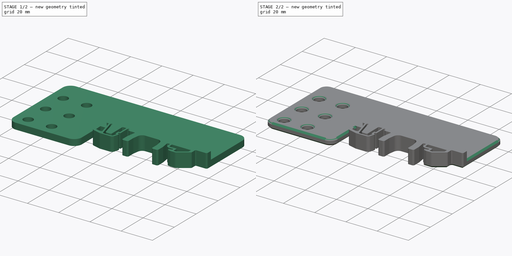
[diagram: build sequence overview — one tinted view per stage of 2, left to right]
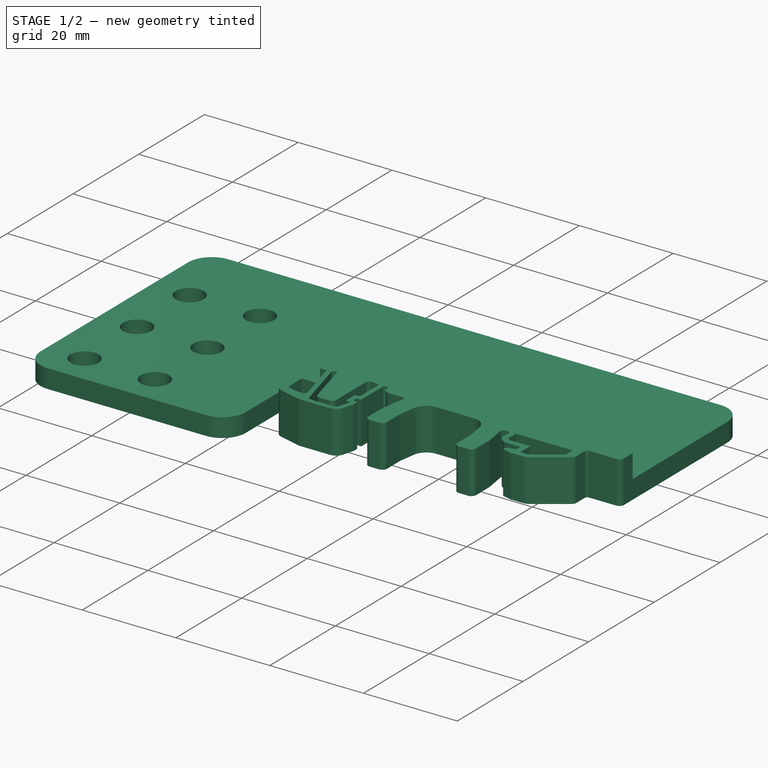
[diagram: stage 1 of 2 — iso view after this stage's code; geometry added in this stage tinted green]
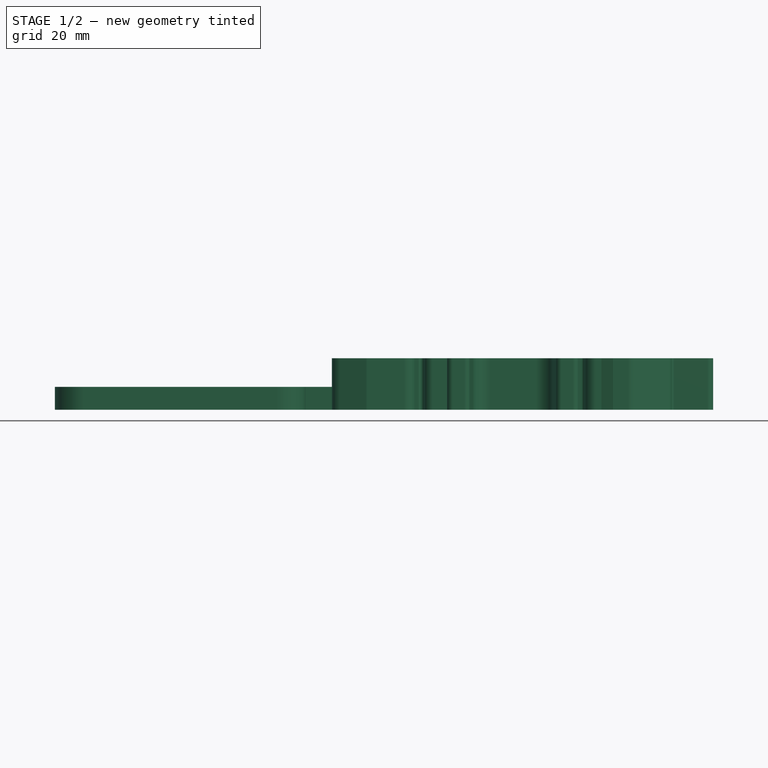
[diagram: stage 1 of 2 — front view after this stage's code; geometry added in this stage tinted green]
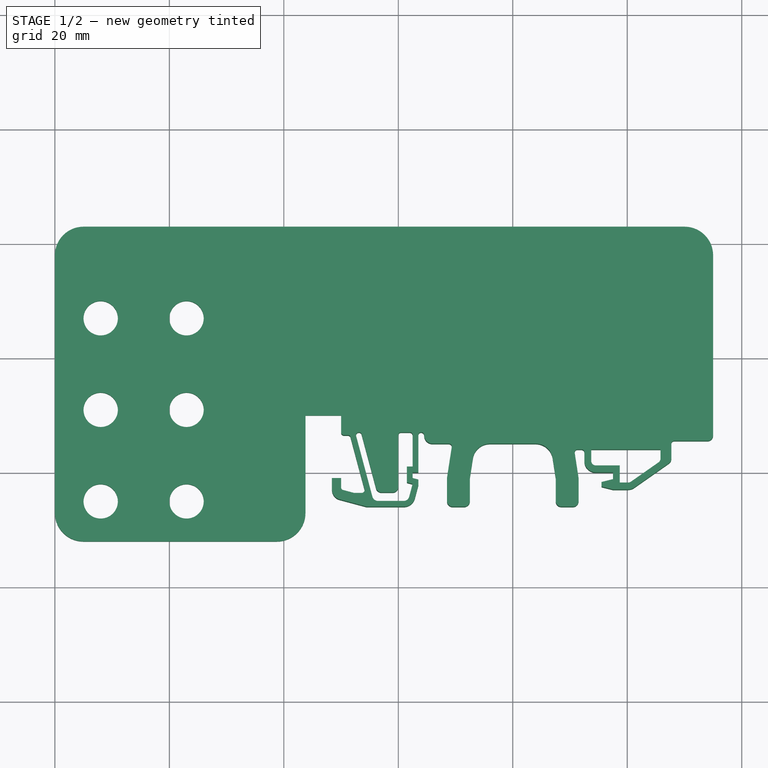
[diagram: stage 1 of 2 — top view after this stage's code; geometry added in this stage tinted green]
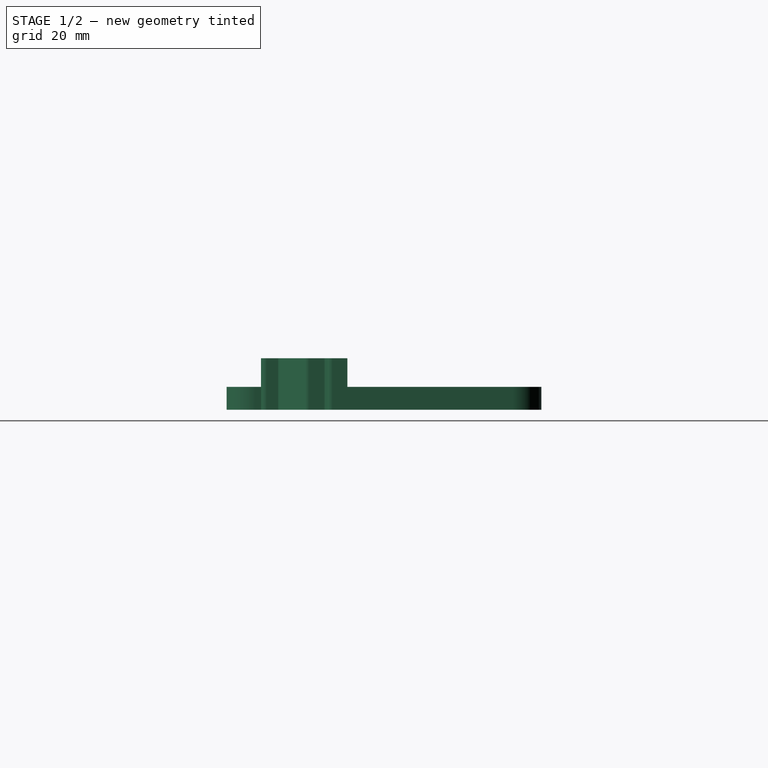
[diagram: stage 1 of 2 — right view after this stage's code; geometry added in this stage tinted green]
FCSTD DOCUMENT  (FreeCAD 0.21R33771 (Git))
Label: 20240715a_din_rail_spacer_9
License: All rights reserved
LicenseURL: http://en.wikipedia.org/wiki/All_rights_reserved
objects: Sketcher::SketchObject×2, PartDesign::Chamfer×2, PartDesign::Pad×1, PartDesign::Pocket×1, PartDesign::Body×1
note: 11 computed .brp shape members not serialized (recipe doc carries the construction recipe); baked Part::Feature solids carry a one-line shape summary decoded from their .brp

FEATURE [Sketcher::SketchObject] Sketch
  FullyConstrained = false
  MapMode = 5
  Support = -> [XY_Plane]
  sketch-geometry (125):
    g0: LineSegment StartX=-30 StartY=10 StartZ=0 EndX=-30 EndY=7 EndZ=0
    g1: ArcOfCircle CenterX=-29.5 CenterY=7 CenterZ=0 NormalX=0 NormalY=0 NormalZ=1 AngleXU=0 Radius=0.5 StartAngle=3.14159 EndAngle=4.71239
    g2: ArcOfCircle CenterX=-28.8294 CenterY=6 CenterZ=0 NormalX=0 NormalY=0 NormalZ=1 AngleXU=0 Radius=0.5 StartAngle=0.261799 EndAngle=1.5708
    g3: LineSegment StartX=-28.3464 StartY=6.12941 StartZ=0 EndX=-25.9081 EndY=-2.97059 EndZ=0
    g4: ArcOfCircle CenterX=-26.3911 CenterY=-3.1 CenterZ=0 NormalX=0 NormalY=0 NormalZ=1 AngleXU=0 Radius=0.5 StartAngle=4.71239 EndAngle=6.54498
    g5: ArcOfCircle CenterX=-29.5 CenterY=-2.61451 CenterZ=0 NormalX=0 NormalY=0 NormalZ=1 AngleXU=0 Radius=0.5 StartAngle=3.14159 EndAngle=4.45059
    g6: LineSegment StartX=-30 StartY=-2.61451 StartZ=0 EndX=-30 EndY=-1 EndZ=0
    g7: LineSegment StartX=-30 StartY=-1 StartZ=0 EndX=-31.6 EndY=-1 EndZ=0
    g8: LineSegment StartX=-31.6 StartY=-1 StartZ=0 EndX=-31.6 EndY=-3 EndZ=0
    g9: ArcOfCircle CenterX=-29.8 CenterY=-3 CenterZ=0 NormalX=0 NormalY=0 NormalZ=1 AngleXU=0 Radius=1.8 StartAngle=3.14159 EndAngle=4.45059
    g10: LineSegment StartX=-30.2659 StartY=-4.73867 StartZ=0 EndX=-25.6857 EndY=-5.96593 EndZ=0
    g11: ArcOfCircle CenterX=-25.4269 CenterY=-5 CenterZ=0 NormalX=0 NormalY=0 NormalZ=1 AngleXU=0 Radius=1 StartAngle=4.45059 EndAngle=4.71239
    g12: LineSegment StartX=-25.4269 StartY=-6 StartZ=0 EndX=-19.0347 EndY=-6 EndZ=0
    g13: ArcOfCircle CenterX=-19.0347 CenterY=-4 CenterZ=0 NormalX=0 NormalY=0 NormalZ=1 AngleXU=0 Radius=2 StartAngle=4.71239 EndAngle=6.02139
    g14: LineSegment StartX=-17.1028 StartY=-4.51764 StartZ=0 EndX=-16.5 EndY=-2.26795 EndZ=0
    g15: LineSegment StartX=-16.5 StartY=-2.26795 StartZ=0 EndX=-16.5 EndY=-1.26795 EndZ=0
    g16: LineSegment StartX=-16.5 StartY=-1.26795 StartZ=0 EndX=-17.5 EndY=-1 EndZ=0
    g17: LineSegment StartX=-17.5 StartY=-1 StartZ=0 EndX=-17.5 EndY=0 EndZ=0
    g18: LineSegment StartX=-17.5 StartY=0 StartZ=0 EndX=-16.5 EndY=0 EndZ=0
    g19: LineSegment StartX=-16.5 StartY=0 StartZ=0 EndX=-16.5 EndY=6.5 EndZ=0
    g20: ArcOfCircle CenterX=-16 CenterY=6.5 CenterZ=0 NormalX=0 NormalY=0 NormalZ=1 AngleXU=0 Radius=0.5 StartAngle=5e-16 EndAngle=3.14159
    g21: ArcOfCircle CenterX=-14 CenterY=6.5 CenterZ=0 NormalX=0 NormalY=0 NormalZ=1 AngleXU=0 Radius=1.5 StartAngle=3.14159 EndAngle=4.71239
    g22: LineSegment StartX=-14 StartY=5 StartZ=0 EndX=-11.1548 EndY=5 EndZ=0
    g23: ArcOfCircle CenterX=-11.1548 CenterY=4.5 CenterZ=0 NormalX=0 NormalY=0 NormalZ=1 AngleXU=0 Radius=0.5 StartAngle=6.12964 EndAngle=7.85398
    g24: LineSegment StartX=-10.6606 StartY=4.42353 StartZ=0 EndX=-11.5 EndY=-1 EndZ=0
    g25: LineSegment StartX=-11.5 StartY=-1 StartZ=0 EndX=-11.5 EndY=-5 EndZ=0
    g26: ArcOfCircle CenterX=-10.5 CenterY=-5 CenterZ=0 NormalX=0 NormalY=0 NormalZ=1 AngleXU=0 Radius=1 StartAngle=3.14159 EndAngle=4.71239
    g27: LineSegment StartX=-10.5 StartY=-6 StartZ=0 EndX=-8.5 EndY=-6 EndZ=0
    g28: ArcOfCircle CenterX=-8.5 CenterY=-5 CenterZ=0 NormalX=0 NormalY=0 NormalZ=1 AngleXU=0 Radius=1 StartAngle=4.71239 EndAngle=6.28319
    g29: LineSegment StartX=-7.5 StartY=-5 StartZ=0 EndX=-7.5 EndY=-1 EndZ=0
    g30: LineSegment StartX=-7.5 StartY=-1 StartZ=0 EndX=-6.96471 EndY=2.45882 EndZ=0
    g31: ArcOfCircle CenterX=-4 CenterY=2 CenterZ=0 NormalX=0 NormalY=0 NormalZ=1 AngleXU=0 Radius=3 StartAngle=1.5708 EndAngle=2.98805
    g32: LineSegment StartX=-4 StartY=5 StartZ=0 EndX=4 EndY=5 EndZ=0
    g33: ArcOfCircle CenterX=4 CenterY=2 CenterZ=0 NormalX=0 NormalY=0 NormalZ=1 AngleXU=0 Radius=3 StartAngle=0.153544 EndAngle=1.5708
    g34: LineSegment StartX=6.96471 StartY=2.45882 StartZ=0 EndX=7.5 EndY=-1 EndZ=0
    g35: LineSegment StartX=7.5 StartY=-1 StartZ=0 EndX=7.5 EndY=-5 EndZ=0
    g36: ArcOfCircle CenterX=8.5 CenterY=-5 CenterZ=0 NormalX=0 NormalY=0 NormalZ=1 AngleXU=0 Radius=1 StartAngle=3.14159 EndAngle=4.71239
    g37: LineSegment StartX=8.5 StartY=-6 StartZ=0 EndX=10.5 EndY=-6 EndZ=0
    g38: ArcOfCircle CenterX=10.5 CenterY=-5 CenterZ=0 NormalX=0 NormalY=0 NormalZ=1 AngleXU=0 Radius=1 StartAngle=4.71239 EndAngle=6.28319
    g39: LineSegment StartX=11.5 StartY=-5 StartZ=0 EndX=11.5 EndY=-1 EndZ=0
    g40: LineSegment StartX=11.5 StartY=-1 StartZ=0 EndX=10.8154 EndY=3.42353 EndZ=0
    g41: LineSegment StartX=12.5 StartY=3.5 StartZ=0 EndX=12.5 EndY=2 EndZ=0
    g42: ArcOfCircle CenterX=14.5 CenterY=2 CenterZ=0 NormalX=0 NormalY=0 NormalZ=1 AngleXU=0 Radius=2 StartAngle=3.14159 EndAngle=4.71239
    g43: LineSegment StartX=14.5 StartY=0 StartZ=0 EndX=17.5 EndY=0 EndZ=0
    g44: LineSegment StartX=17.5 StartY=0 StartZ=0 EndX=17.5 EndY=-1.2 EndZ=0
    g45: LineSegment StartX=17.5 StartY=-1.2 StartZ=0 EndX=15.5 EndY=-1.7 EndZ=0
    g46: LineSegment StartX=15.5 StartY=-1.7 StartZ=0 EndX=15.5 EndY=-2.5 EndZ=0
    g47: LineSegment StartX=15.5 StartY=-2.5 StartZ=0 EndX=17.5 EndY=-3 EndZ=0
    g48: LineSegment StartX=17.5 StartY=-3 StartZ=0 EndX=20.1 EndY=-3 EndZ=0
    g49: ArcOfCircle CenterX=20.1 CenterY=-1 CenterZ=0 NormalX=0 NormalY=0 NormalZ=1 AngleXU=0 Radius=2 StartAngle=4.71239 EndAngle=5.32325
    g50: LineSegment StartX=21.2472 StartY=-2.6383 StartZ=0 EndX=27.2727 EndY=1.58085 EndZ=0
    g51: LineSegment StartX=35 StartY=6.5 StartZ=0 EndX=35 EndY=38 EndZ=0
    g52: LineSegment StartX=-23.8943 StartY=-2.75882 StartZ=0 EndX=-26.4099 EndY=6.62941 EndZ=0
    g53: ArcOfCircle CenterX=-26.8928 CenterY=6.5 CenterZ=0 NormalX=0 NormalY=0 NormalZ=1 AngleXU=0 Radius=0.5 StartAngle=0.261799 EndAngle=3.40339
    g54: LineSegment StartX=-27.3758 StartY=6.37059 StartZ=0 EndX=-24.5276 EndY=-4.25882 EndZ=0
    g55: ArcOfCircle CenterX=-23.5617 CenterY=-4 CenterZ=0 NormalX=0 NormalY=0 NormalZ=1 AngleXU=0 Radius=1 StartAngle=3.40339 EndAngle=4.71239
    g56: LineSegment StartX=-23.5617 StartY=-5 StartZ=0 EndX=-19.0617 EndY=-5 EndZ=0
    g57: ArcOfCircle CenterX=-19.0617 CenterY=-4 CenterZ=0 NormalX=0 NormalY=0 NormalZ=1 AngleXU=0 Radius=1 StartAngle=4.71239 EndAngle=6.02139
    g58: LineSegment StartX=-18.0958 StartY=-4.25882 StartZ=0 EndX=-17.5 EndY=-2.03528 EndZ=0
    g59: LineSegment StartX=-17.5 StartY=-2.03528 StartZ=0 EndX=-18.5 EndY=-1.76733 EndZ=0
    g60: LineSegment StartX=-18.5 StartY=-1.76733 StartZ=0 EndX=-18.5 EndY=1 EndZ=0
    g61: LineSegment StartX=-18.5 StartY=1 StartZ=0 EndX=-17.5 EndY=1 EndZ=0
    g62: LineSegment StartX=-17.5 StartY=1 StartZ=0 EndX=-17.5 EndY=6.5 EndZ=0
    g63: ArcOfCircle CenterX=-18 CenterY=6.5 CenterZ=0 NormalX=0 NormalY=0 NormalZ=1 AngleXU=0 Radius=0.5 StartAngle=0 EndAngle=1.5708
    g64: LineSegment StartX=-18 StartY=7 StartZ=0 EndX=-19.5 EndY=7 EndZ=0
    g65: ArcOfCircle CenterX=-19.5 CenterY=6.5 CenterZ=0 NormalX=0 NormalY=0 NormalZ=1 AngleXU=0 Radius=0.5 StartAngle=1.5708 EndAngle=3.14159
    g66: LineSegment StartX=-20 StartY=6.5 StartZ=0 EndX=-20 EndY=-2.5 EndZ=0
    g67: ArcOfCircle CenterX=-21 CenterY=-2.5 CenterZ=0 NormalX=0 NormalY=0 NormalZ=1 AngleXU=0 Radius=1 StartAngle=4.71239 EndAngle=6.28319
    g68: LineSegment StartX=-21 StartY=-3.5 StartZ=0 EndX=-22.9284 EndY=-3.5 EndZ=0
    g69: ArcOfCircle CenterX=-22.9284 CenterY=-2.5 CenterZ=0 NormalX=0 NormalY=0 NormalZ=1 AngleXU=0 Radius=1 StartAngle=3.40339 EndAngle=4.71239
    g70: LineSegment StartX=25.8188 StartY=4 StartZ=0 EndX=13.7 EndY=4 EndZ=0
    g71: LineSegment StartX=13.7 StartY=4 StartZ=0 EndX=13.7 EndY=2 EndZ=0
    g72: ArcOfCircle CenterX=14.5 CenterY=2 CenterZ=0 NormalX=0 NormalY=0 NormalZ=1 AngleXU=0 Radius=0.8 StartAngle=3.14159 EndAngle=4.71239
    g73: LineSegment StartX=14.5 StartY=1.2 StartZ=0 EndX=18.7 EndY=1.2 EndZ=0
    g74: LineSegment StartX=18.7 StartY=1.2 StartZ=0 EndX=18.7 EndY=-1.8 EndZ=0
    g75: LineSegment StartX=18.7 StartY=-1.8 StartZ=0 EndX=20.1 EndY=-1.8 EndZ=0
    g76: ArcOfCircle CenterX=20.1 CenterY=-0.8 CenterZ=0 NormalX=0 NormalY=0 NormalZ=1 AngleXU=0 Radius=1 StartAngle=4.71239 EndAngle=5.32325
    g77: LineSegment StartX=20.6736 StartY=-1.61915 StartZ=0 EndX=25.4776 EndY=1.74468 EndZ=0
    g78: ArcOfCircle CenterX=25.0188 CenterY=2.4 CenterZ=0 NormalX=0 NormalY=0 NormalZ=1 AngleXU=0 Radius=0.8 StartAngle=5.32325 EndAngle=6.28319
    g79: LineSegment StartX=25.8188 StartY=2.4 StartZ=0 EndX=25.8188 EndY=4 EndZ=0
    g80: LineSegment StartX=-30 StartY=7 StartZ=0 EndX=35 EndY=7 EndZ=0
    g81: LineSegment StartX=-29.6294 StartY=-3.09747 StartZ=0 EndX=-27.754 EndY=-3.6 EndZ=0
    g82: LineSegment StartX=-27.754 StartY=-3.6 StartZ=0 EndX=-26.3911 EndY=-3.6 EndZ=0
    g83: LineSegment StartX=-29.5 StartY=6.5 StartZ=0 EndX=-28.8294 EndY=6.5 EndZ=0
    g84: LineSegment StartX=11.3095 StartY=4 StartZ=0 EndX=12 EndY=4 EndZ=0
    g85: ArcOfCircle CenterX=11.3095 CenterY=3.5 CenterZ=0 NormalX=0 NormalY=0 NormalZ=1 AngleXU=0 Radius=0.5 StartAngle=1.5708 EndAngle=3.29514
    g86: GeomPoint X=10.7262 Y=4 Z=0
    g87: ArcOfCircle CenterX=12 CenterY=3.5 CenterZ=0 NormalX=0 NormalY=0 NormalZ=1 AngleXU=0 Radius=0.5 StartAngle=2e-16 EndAngle=1.5708
    g88: GeomPoint X=12.5 Y=4 Z=0
    g89: LineSegment StartX=34 StartY=5.5 StartZ=0 EndX=28.1992 EndY=5.5 EndZ=0
    g90: ArcOfCircle CenterX=26.6992 CenterY=2.4 CenterZ=0 NormalX=0 NormalY=0 NormalZ=1 AngleXU=0 Radius=1 StartAngle=5.32325 EndAngle=6.28319
    g91: ArcOfCircle CenterX=34 CenterY=6.5 CenterZ=0 NormalX=0 NormalY=0 NormalZ=1 AngleXU=0 Radius=1 StartAngle=4.71239 EndAngle=6.28319
    g92: GeomPoint X=35 Y=5.5 Z=0
    g93: LineSegment StartX=27.6992 StartY=2.4 StartZ=0 EndX=27.6992 EndY=5 EndZ=0
    g94: ArcOfCircle CenterX=28.1992 CenterY=5 CenterZ=0 NormalX=0 NormalY=0 NormalZ=1 AngleXU=0 Radius=0.5 StartAngle=1.5708 EndAngle=3.14159
    g95: GeomPoint X=0 Y=12 Z=0
    g96: GeomPoint X=-30 Y=43 Z=0
    g97: LineSegment StartX=-23 StartY=57.9184 StartZ=0 EndX=23 EndY=57.9184 EndZ=0
    g98: LineSegment StartX=23 StartY=57.9184 StartZ=0 EndX=23 EndY=30.9446 EndZ=0
    g99: LineSegment StartX=23 StartY=30.9446 StartZ=0 EndX=-23 EndY=30.9446 EndZ=0
    g100: LineSegment StartX=-23 StartY=30.9446 StartZ=0 EndX=-23 EndY=57.9184 EndZ=0
    g101: LineSegment StartX=-30 StartY=10 StartZ=0 EndX=-36.2255 EndY=10 EndZ=0
    g102: LineSegment StartX=-36.2255 StartY=10 StartZ=0 EndX=-36.2255 EndY=-7 EndZ=0
    g103: LineSegment StartX=-41.2255 StartY=-12 StartZ=0 EndX=-75 EndY=-12 EndZ=0
    g104: LineSegment StartX=-80 StartY=-7 StartZ=0 EndX=-80 EndY=38 EndZ=0
    g105: LineSegment StartX=-75 StartY=43 StartZ=0 EndX=30 EndY=43 EndZ=0
    g106: ArcOfCircle CenterX=-75 CenterY=38 CenterZ=0 NormalX=0 NormalY=0 NormalZ=1 AngleXU=0 Radius=5 StartAngle=1.5708 EndAngle=3.14159
    g107: GeomPoint X=-80 Y=43 Z=0
    g108: ArcOfCircle CenterX=-75 CenterY=-7 CenterZ=0 NormalX=0 NormalY=0 NormalZ=1 AngleXU=0 Radius=5 StartAngle=3.14159 EndAngle=4.71239
    g109: GeomPoint X=-80 Y=-12 Z=0
    g110: ArcOfCircle CenterX=-41.2255 CenterY=-7 CenterZ=0 NormalX=0 NormalY=0 NormalZ=1 AngleXU=0 Radius=5 StartAngle=4.71239 EndAngle=6.28319
    g111: GeomPoint X=-36.2255 Y=-12 Z=0
    g112: ArcOfCircle CenterX=30 CenterY=38 CenterZ=0 NormalX=0 NormalY=0 NormalZ=1 AngleXU=0 Radius=5 StartAngle=-9e-16 EndAngle=1.5708
    g113: GeomPoint X=35 Y=43 Z=0
    g114: Circle CenterX=-72 CenterY=-5 CenterZ=0 NormalX=0 NormalY=0 NormalZ=1 AngleXU=0 Radius=3
    g115: Circle CenterX=-72 CenterY=11 CenterZ=0 NormalX=0 NormalY=0 NormalZ=1 AngleXU=0 Radius=3
    g116: Circle CenterX=-57 CenterY=11 CenterZ=0 NormalX=0 NormalY=0 NormalZ=1 AngleXU=0 Radius=3
    g117: Circle CenterX=-57 CenterY=-5 CenterZ=0 NormalX=0 NormalY=0 NormalZ=1 AngleXU=0 Radius=3
    g118: LineSegment StartX=-72 StartY=11 StartZ=0 EndX=-72 EndY=-5 EndZ=0
    g119: LineSegment StartX=-57 StartY=-5 StartZ=0 EndX=-57 EndY=11 EndZ=0
    g120: LineSegment StartX=-72 StartY=11 StartZ=0 EndX=-57 EndY=11 EndZ=0
    g121: Circle CenterX=-72 CenterY=27 CenterZ=0 NormalX=0 NormalY=0 NormalZ=1 AngleXU=0 Radius=3
    g122: Circle CenterX=-57 CenterY=27 CenterZ=0 NormalX=0 NormalY=0 NormalZ=1 AngleXU=0 Radius=3
    g123: LineSegment StartX=-72 StartY=11 StartZ=0 EndX=-72 EndY=27 EndZ=0
    g124: LineSegment StartX=-72 StartY=27 StartZ=0 EndX=-57 EndY=27 EndZ=0
  constraints (317):
    c: Vertical(g0)
    c: Tangent(g0,g1) = -1.5708
    c: Tangent(g3,g4) = 1.5708
    c: Vertical(g6)
    c: Coincident(g6,g7)
    c: Horizontal(g7)
    c: Coincident(g7,g8)
    c: Vertical(g8)
    c: Tangent(g8,g9) = -1.5708
    c: Tangent(g10,g11) = -1.5708
    c: Horizontal(g12)
    c: Tangent(g12,g13) = -1.5708
    c: Coincident(g14,g15)
    c: Vertical(g15)
    c: Coincident(g15,g16)
    c: Coincident(g16,g17)
    c: PointOnObject(g17,g-1)
    c: Vertical(g17)
    c: Coincident(g17,g18)
    c: PointOnObject(g18,g-1)
    c: Coincident(g18,g19)
    c: Vertical(g19)
    c: Tangent(g19,g20) = 1.5708
    c: Tangent(g20,g21) = 1.5708
    c: Horizontal(g22)
    c: Tangent(g22,g23) = 1.5708
    c: Coincident(g24,g25)
    c: Vertical(g25)
    c: Tangent(g25,g26) = -1.5708
    c: Horizontal(g27)
    c: Tangent(g27,g28) = -1.5708
    c: Vertical(g29)
    c: Coincident(g29,g30)
    c: Tangent(g30,g31) = 1.5708
    c: Tangent(g32,g33) = 1.5708
    c: Coincident(g34,g35)
    c: Vertical(g35)
    c: Tangent(g35,g36) = -1.5708
    c: Horizontal(g37)
    c: Tangent(g37,g38) = -1.5708
    c: Vertical(g39)
    c: Coincident(g39,g40)
    c: Vertical(g41)
    c: Tangent(g41,g42) = -1.5708
    c: Tangent(g42,g43) = -1.5708
    c: Vertical(g44)
    c: Coincident(g44,g45)
    c: Coincident(g45,g46)
    c: Vertical(g46)
    c: Coincident(g46,g47)
    c: Coincident(g47,g48)
    c: Horizontal(g48)
    c: Tangent(g48,g49) = -1.5708
    c: Vertical(g51)
    c: Tangent(g52,g53) = -1.5708
    c: Tangent(g54,g55) = -1.5708
    c: Horizontal(g56)
    c: Tangent(g56,g57) = -1.5708
    c: Coincident(g58,g59)
    c: Coincident(g59,g60)
    c: Vertical(g60)
    c: Coincident(g60,g61)
    c: Horizontal(g61)
    c: Coincident(g61,g62)
    c: Vertical(g62)
    c: Tangent(g62,g63) = -1.5708
    c: Tangent(g64,g65) = -1.5708
    c: Vertical(g66)
    c: Tangent(g66,g67) = 1.5708
    c: Horizontal(g68)
    c: Tangent(g68,g69) = 1.5708
    c: Horizontal(g70)
    c: Coincident(g70,g71)
    c: Vertical(g71)
    c: Tangent(g71,g72) = -1.5708
    c: Horizontal(g73)
    c: Coincident(g73,g74)
    c: Vertical(g74)
    c: Coincident(g74,g75)
    c: Horizontal(g75)
    c: Tangent(g75,g76) = -1.5708
    c: Tangent(g77,g78) = -1.5708
    c: Coincident(g79,g70)
    c: Vertical(g79)
    c: Radius(g4) = 0.5
    c: Radius(g5) = 0.5
    c: DistanceY(g6,g-1) = 1
    c: DistanceX(g7,g7) = 1.6
    c: DistanceY(g8,g8) = 2
    c: Radius(g9) = 1.8
    c: Radius(g11) = 1
    c: Radius(g13) = 2
    c: Radius(g1) = 0.5
    c: Tangent(g2,g3) = 1.5708
    c: Tangent(g11,g12) = -1.5708
    c: Radius(g67) = 1
    c: Radius(g26) = 1
    c: Radius(g31) = 3
    c: Radius(g42) = 2
    c: Radius(g72) = 0.8
    c: Radius(g78) = 0.8
    c: Radius(g76) = 1
    c: Radius(g49) = 2
    c: Vertical(g61,g58)
    c: Vertical(g18,g15)
    c: Vertical(g61,g17)
    c: DistanceY(g56,g67) = 1.5
    c: DistanceY(g12,g56) = 1
    c: DistanceX(g65,g62) = 2.5
    c: DistanceX(g43,g73) = 1.2
    c: DistanceY(g43,g73) = 1.2
    c: Vertical(g44,g47)
    c: DistanceY(g47,g44) = 1.8
    c: Tangent(g26,g27) = -1.5708
    c: Tangent(g28,g29) = -1.5708
    c: DistanceX(g17,g43) = 35
    c: Symmetric(g17,g43,g-2)
    c: Tangent(g36,g37) = -1.5708
    c: Tangent(g38,g39) = -1.5708
    c: Equal(g38,g36)
    c: Equal(g36,g28)
    c: Equal(g28,g26)
    c: Equal(g31,g33)
    c: Equal(g39,g35)
    c: Equal(g35,g29)
    c: Equal(g29,g25)
    c: DistanceY(g-1,g27) = -6
    c: Symmetric(g28,g35,g-2)
    c: DistanceX(g28,g35) = 15
    c: DistanceX(g25,g28) = 4
    c: Equal(g27,g37)
    c: DistanceY(g25,g25) = 4
    c: DistanceY(g-1,g31) = 5
    c: Equal(g57,g67)
    c: Equal(g67,g69)
    c: Equal(g69,g55)
    c: DistanceY(g17,g17) = 1
    c: DistanceY(g44,g44) = 1.2
    c: Equal(g47,g45)
    c: DistanceY(g46,g46) = 0.8
    c: DistanceX(g45,g44) = 2
    c: DistanceX(g43,g43) = 3
    c: Tangent(g31,g32) = 1.5708
    c: Symmetric(g31,g32,g-2)
    c: DistanceX(g32,g32) = 8
    c: Parallel(g24,g30)
    c: Horizontal(g22,g31)
    c: Tangent(g65,g66) = -1.5708
    c: Tangent(g63,g64) = -1.5708
    c: Equal(g53,g65)
    c: Equal(g65,g63)
    c: Equal(g63,g20)
    c: Equal(g20,g23)
    c: Equal(g17,g18)
    c: Equal(g18,g61)
    c: Parallel(g14,g58)
    c: Angle(g16,g18) = 0.261799
    c: DistanceY(g-1,g12) = -6
    c: Distance(g74,g48) = 1.2
    c: Tangent(g78,g79) = -1.5708
    c: Tangent(g49,g50) = -1.5708
    c: Tangent(g76,g77) = -1.5708
    c: DistanceY(g79,g79) = 1.6
    c: Parallel(g77,g50)
    c: Vertical(g48,g75)
    c: Angle(g70,g77) = 0.610865
    c: Perpendicular(g16,g58)
    c: Equal(g15,g17)
    c: Tangent(g13,g14) = -1.5708
    c: Tangent(g57,g58) = -1.5708
    c: Parallel(g3,g54)
    c: Parallel(g54,g52)
    c: Angle(g66,g52) = 0.261799
    c: Tangent(g72,g73) = -1.5708
    c: Tangent(g9,g10) = -1.5708
    c: Tangent(g5,g6) = 1.5708
    c: Distance(g53,g3) = 1
    c: DistanceX(g56,g56) = 4.5
    c: Tangent(g55,g56) = -1.5708
    c: Parallel(g59,g16)
    c: Distance(g58,g16) = 1
    c: Tangent(g69,g52) = 1.5708
    c: Coincident(g80,g0)
    c: PointOnObject(g80,g51)
    c: Horizontal(g80)
    c: Tangent(g20,g80)
    c: Horizontal(g64)
    c: PointOnObject(g64,g80)
    c: Tangent(g53,g80)
    c: DistanceY(g-1,g0) = 7
    c: Parallel(g10,g16)
    c: Parallel(g81,g10)
    c: Distance(g5,g10) = 1.75
    c: Coincident(g82,g81)
    c: Horizontal(g82)
    c: Tangent(g81,g5) = -1.5708
    c: Tangent(g82,g4) = -1.5708
    c: DistanceY(g11,g4) = 2.4
    c: Vertical(g6,g0)
    c: Tangent(g53,g54) = -1.5708
    c: DistanceY(g17,g61) = 1
    c: Tangent(g23,g24) = 1.5708
    c: Tangent(g33,g34) = 1.5708
    c: Tangent(g21,g22) = -1.5708
    c: Tangent(g67,g68) = 1.5708
    c: Equal(g1,g2)
    c: Horizontal(g21,g19)
    c: Tangent(g83,g1) = -1.5708
    c: Horizontal(g83)
    c: Tangent(g2,g83) = 1.5708
    c: Parallel(g34,g40)
    c: DistanceX(g41,g71) = 1.2
    c: Horizontal(g84)
    c: Horizontal(g88,g70)
    c: PointOnObject(g86,g40)
    c: PointOnObject(g86,g84)
    c: Tangent(g40,g85) = 1.5708
    c: Tangent(g84,g85) = 1.5708
    c: PointOnObject(g88,g41)
    c: PointOnObject(g88,g84)
    c: Tangent(g41,g87) = 1.5708
    c: Tangent(g84,g87) = 1.5708
    c: Equal(g85,g87)
    c: Equal(g85,g23)
    c: DistanceX(g75,g75) = 1.4
    c: DistanceY(g71,g71) = 2
    c: Radius(g85) = 0.5
    c: Horizontal(g89)
    c: PointOnObject(g92,g51)
    c: PointOnObject(g92,g89)
    c: Tangent(g51,g91) = -1.5708
    c: Tangent(g89,g91) = 1.5708
    c: Radius(g91) = 1
    c: Tangent(g90,g50) = -1.5708
    c: Radius(g90) = 1
    c: Horizontal(g78,g90)
    c: DistanceY(g51,g80) = 0.5
    c: Vertical(g93)
    c: Tangent(g93,g90) = -1.5708
    c: Tangent(g89,g94) = -1.5708
    c: Tangent(g93,g94) = 1.5708
    c: Radius(g94) = 0.5
    c: DistanceX(g-2,g95) = 0  'Center_Offset'
    c: Horizontal(g43)
    c: DistanceX(g0) = -30
    c: Coincident(g44,g43)
    c: PointOnObject(g96,g0)
    c: Coincident(g97,g98)
    c: Coincident(g98,g99)
    c: Coincident(g99,g100)
    c: Coincident(g100,g97)
    c: Horizontal(g99)
    c: Vertical(g98)
    c: Vertical(g100)
    c: Symmetric(g97,g97,g-2)
    c: DistanceX(g97,g97) = 46
    c: Coincident(g0,g101)
    c: Horizontal(g101)
    c: Coincident(g101,g102)
    c: Vertical(g102)
    c: Horizontal(g103)
    c: Vertical(g104)
    c: Horizontal(g105)
    c: DistanceX(g80) = 35
    c: PointOnObject(g107,g104)
    c: PointOnObject(g107,g105)
    c: Tangent(g104,g106) = 1.5708
    c: Tangent(g105,g106) = 1.5708
    c: PointOnObject(g109,g103)
    c: PointOnObject(g109,g104)
    c: Tangent(g103,g108) = 1.5708
    c: Tangent(g104,g108) = 1.5708
    c: PointOnObject(g111,g102)
    c: PointOnObject(g111,g103)
    c: Tangent(g102,g110) = 1.5708
    c: Tangent(g103,g110) = 1.5708
    c: PointOnObject(g113,g51)
    c: PointOnObject(g113,g105)
    c: Tangent(g51,g112) = -1.5708
    c: Tangent(g105,g112) = 1.5708
    c: Equal(g112,g106)
    c: Equal(g106,g108)
    c: Equal(g108,g110)
    c: Radius(g106) = 5
    c: DistanceY(g103,g18) = 12
    c: DistanceX(g101) = -36.2255
    c: DistanceY(g101) = 10
    c: DistanceX(g104) = -80
    c: DistanceY(g43,g105) = 43
    c: Equal(g115,g114)
    c: Equal(g114,g117)
    c: Diameter(g114) = 6
    c: Coincident(g118,g115)
    c: Coincident(g118,g114)
    c: Vertical(g118)
    c: Coincident(g119,g117)
    c: Coincident(g119,g116)
    c: Vertical(g119)
    c: Coincident(g120,g115)
    c: Coincident(g120,g116)
    c: Horizontal(g120)
    c: Equal(g119,g118)
    c: DistanceX(g115) = -72
    c: DistanceY(g115) = 11
    c: DistanceY(g114) = -5
    c: DistanceX(g116) = -57
    c: Equal(g115,g116)
    c: Equal(g122,g121)
    c: Equal(g121,g116)
    c: Coincident(g123,g115)
    c: Coincident(g123,g121)
    c: Coincident(g124,g121)
    c: Coincident(g124,g122)
    c: Horizontal(g124)
    c: Vertical(g123)
    c: Equal(g118,g123)
    c: Equal(g124,g120)
FEATURE [PartDesign::Pad] Pad  label="spacer"
  AllowMultiFace = false
  Direction = (0,0,1)
  Length = 9
  Length2 = 100
  Profile = -> Sketch
  ReferenceAxis = -> Sketch [N_Axis]
  Refine = true
  Reversed = true
  Type = 0
FEATURE [Sketcher::SketchObject] Sketch001
  AttachmentOffset = pos=(0,0,-5) rot=(0,0,1;0rad)
  FullyConstrained = false
  MapMode = 5
  Placement = pos=(0,0,-5) rot=(0,0,1;0rad)
  Support = -> [XY_Plane]
  sketch-geometry (6):
    g0: LineSegment StartX=-87.3463 StartY=-13.9154 StartZ=0 EndX=-32.4338 EndY=-13.9154 EndZ=0
    g1: LineSegment StartX=-32.4338 StartY=-13.9154 StartZ=0 EndX=-32.4338 EndY=9.09943 EndZ=0
    g2: LineSegment StartX=-32.4338 StartY=9.09943 StartZ=0 EndX=44.1477 EndY=9.09943 EndZ=0
    g3: LineSegment StartX=44.1477 StartY=9.09943 StartZ=0 EndX=44.1477 EndY=52.7064 EndZ=0
    g4: LineSegment StartX=44.1477 StartY=52.7064 StartZ=0 EndX=-87.3463 EndY=52.7064 EndZ=0
    g5: LineSegment StartX=-87.3463 StartY=52.7064 StartZ=0 EndX=-87.3463 EndY=-13.9154 EndZ=0
  constraints (12):
    c: Horizontal(g0)
    c: Coincident(g0,g1)
    c: Vertical(g1)
    c: Coincident(g1,g2)
    c: Horizontal(g2)
    c: Coincident(g2,g3)
    c: Vertical(g3)
    c: Coincident(g3,g4)
    c: Horizontal(g4)
    c: Coincident(g4,g5)
    c: Coincident(g5,g0)
    c: Vertical(g5)
FEATURE [PartDesign::Pocket] Pocket
  BaseFeature = -> Pad
  Direction = (0,0,-1)
  Length = 5
  Length2 = 5
  Profile = -> Sketch001
  ReferenceAxis = -> Sketch001 [N_Axis]
  Reversed = true
  Type = 1
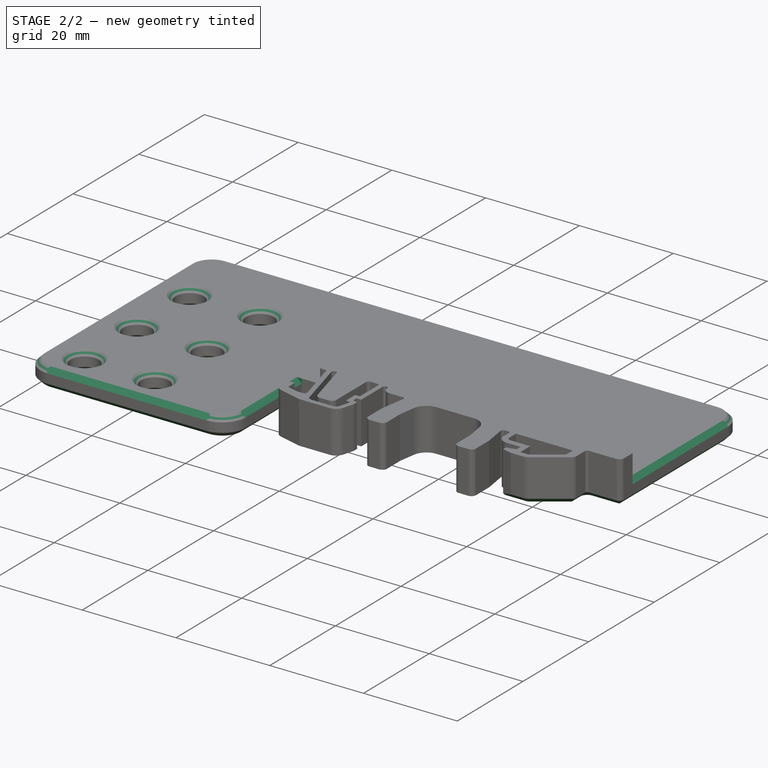
[diagram: stage 2 of 2 — iso view after this stage's code; geometry added in this stage tinted green]
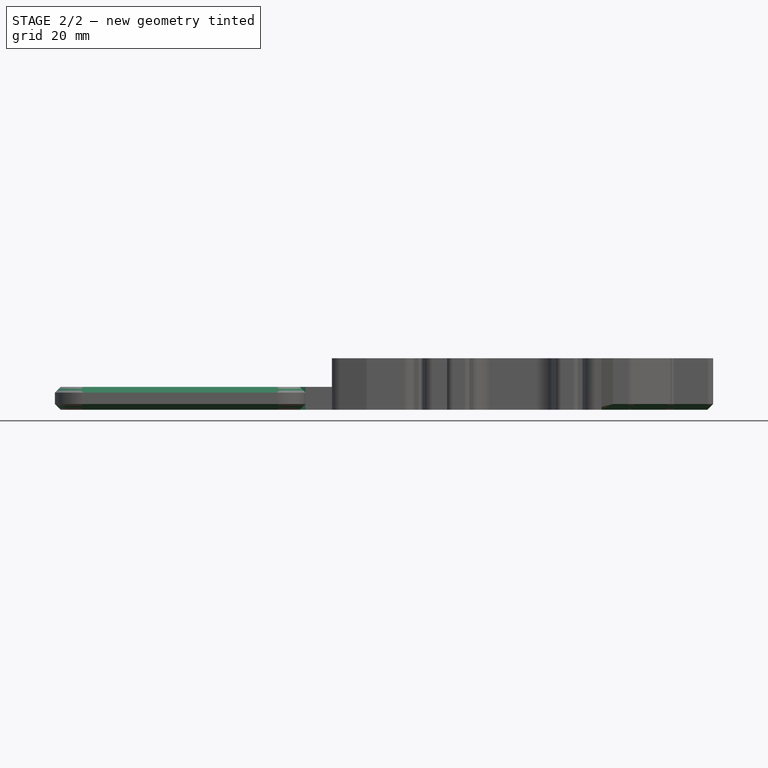
[diagram: stage 2 of 2 — front view after this stage's code; geometry added in this stage tinted green]
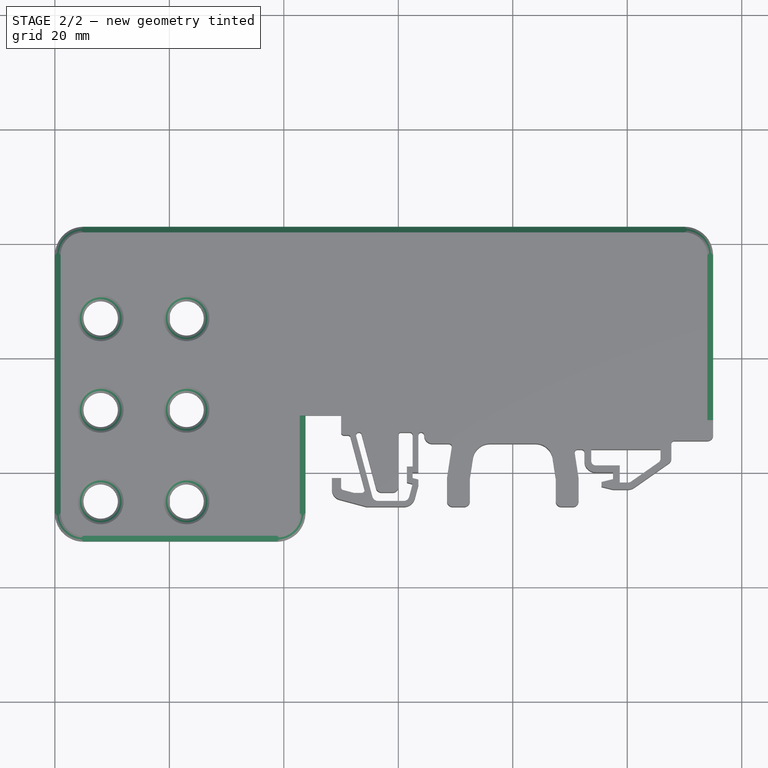
[diagram: stage 2 of 2 — top view after this stage's code; geometry added in this stage tinted green]
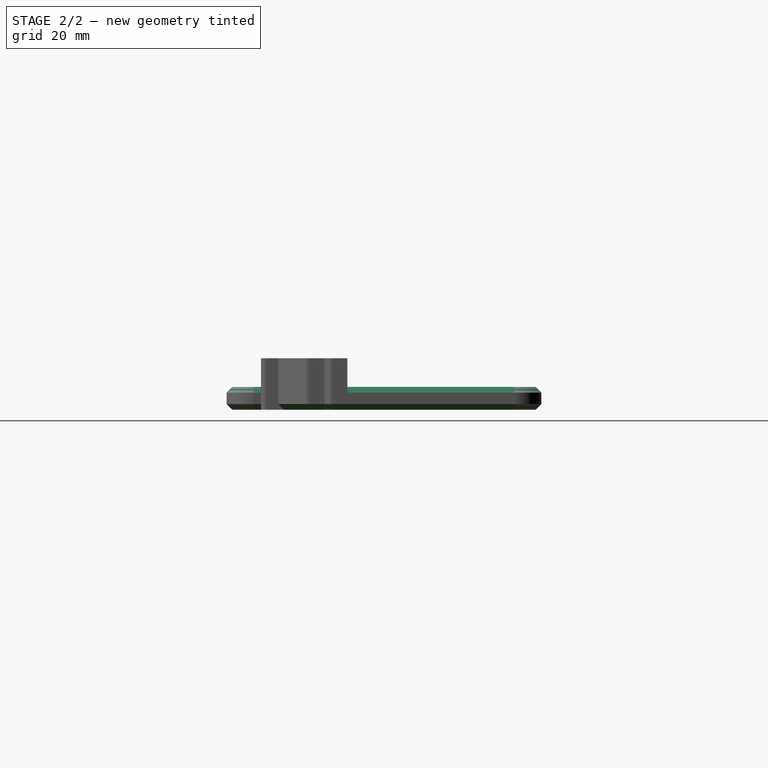
[diagram: stage 2 of 2 — right view after this stage's code; geometry added in this stage tinted green]
FEATURE [PartDesign::Chamfer] Chamfer
  Angle = 45
  Base = -> Pocket [Face20,Face22,Face21,Face19,Face18,Face17]
  BaseFeature = -> Pocket
  ChamferType = 0
  FlipDirection = false
  Size = 1
  Size2 = 1
  SupportTransform = false
  UseAllEdges = false
FEATURE [PartDesign::Chamfer] Chamfer001
  Angle = 45
  Base = -> Chamfer [Edge10,Edge41]
  BaseFeature = -> Chamfer
  ChamferType = 0
  FlipDirection = false
  Size = 1
  Size2 = 1
  SupportTransform = false
  UseAllEdges = false
FEATURE [PartDesign::Body] Body  label="din_rail_spacer"
  Group = -> [Sketch,Pad,Sketch001,Pocket,Chamfer,Chamfer001]
  Origin = -> Origin
  Tip = -> Chamfer001
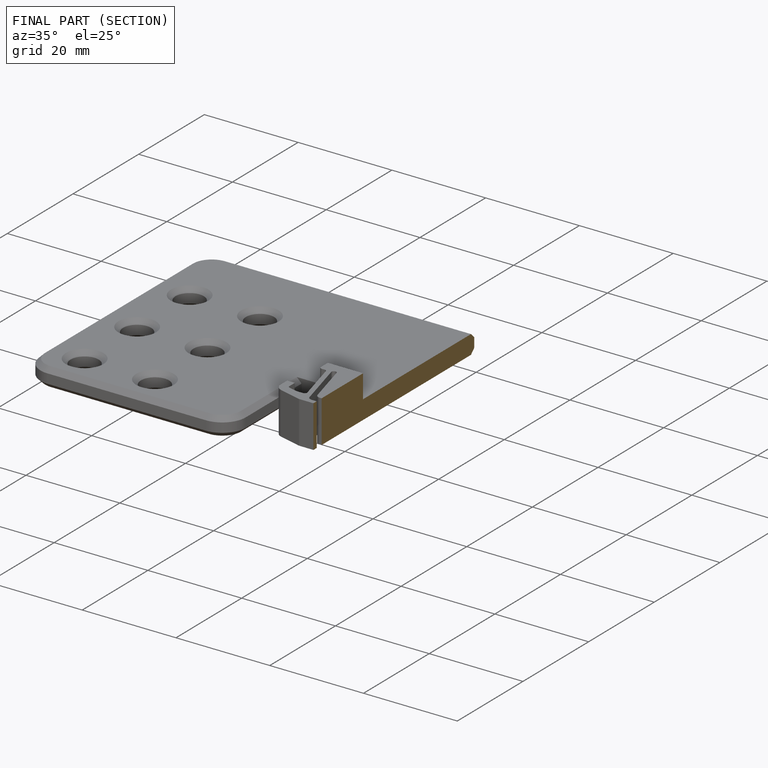
[diagram: finished part — half-section view (interior)]
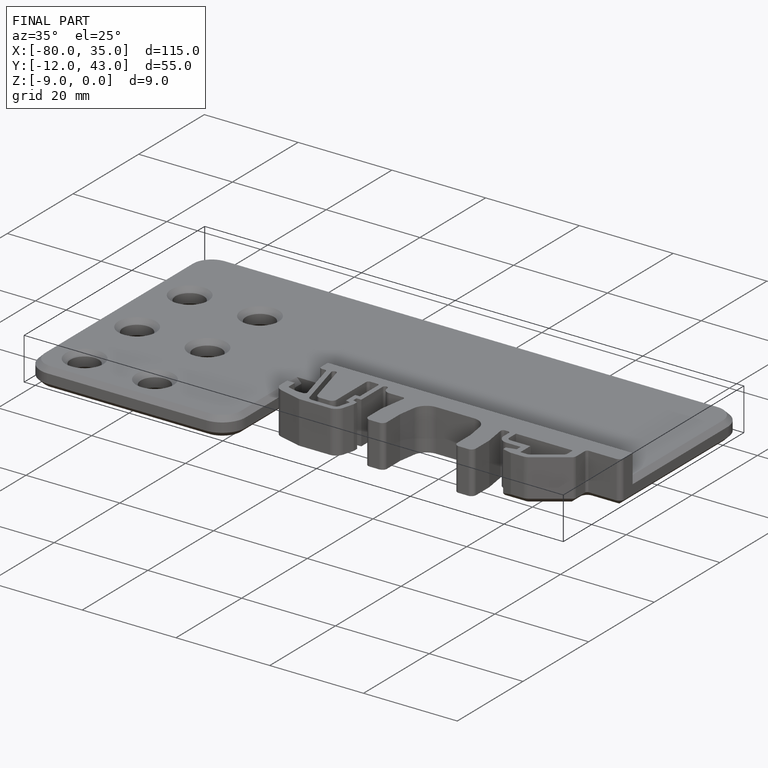
[diagram: finished part — iso view with bounding-box wireframe]
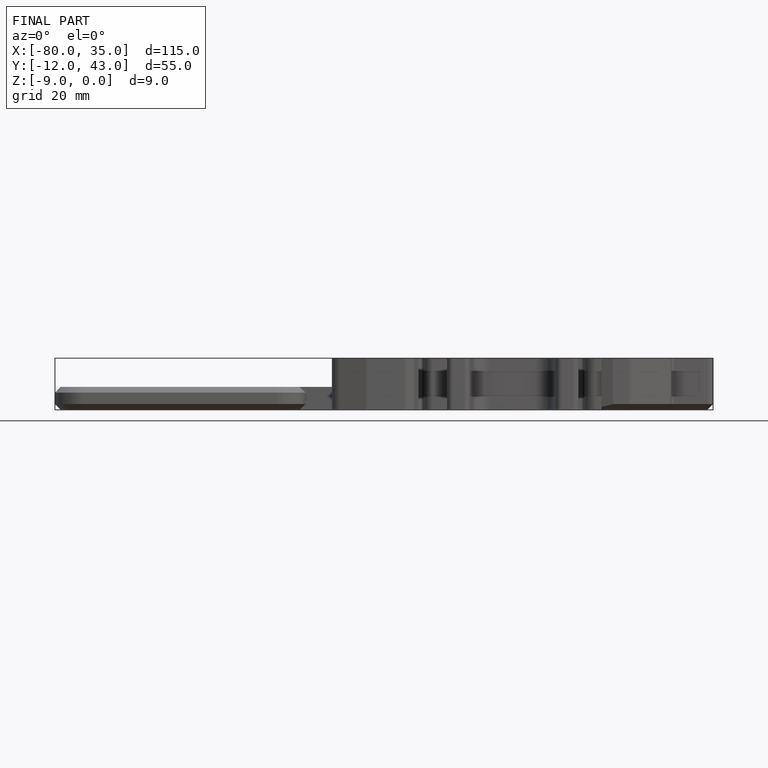
[diagram: finished part — front view with bounding-box wireframe]
